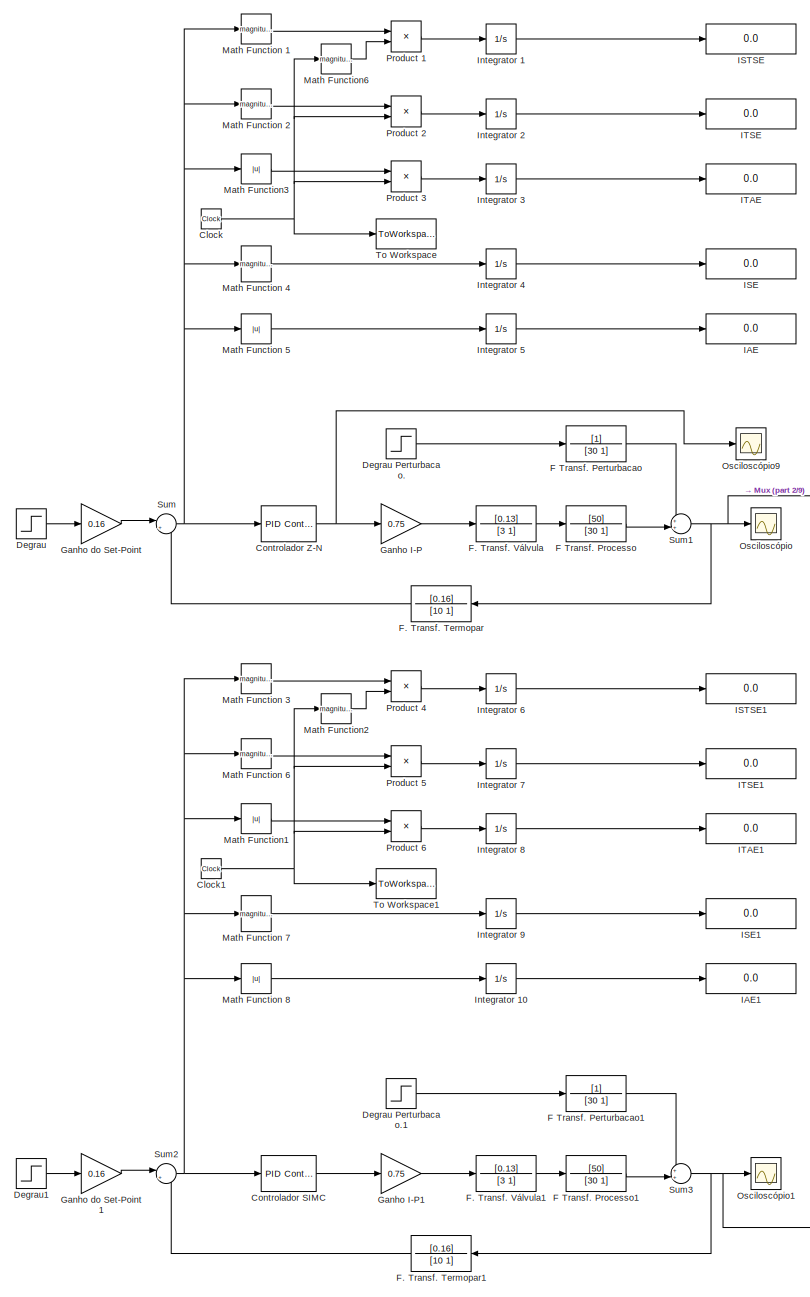
[diagram: root canvas - part 1/9, top left region]
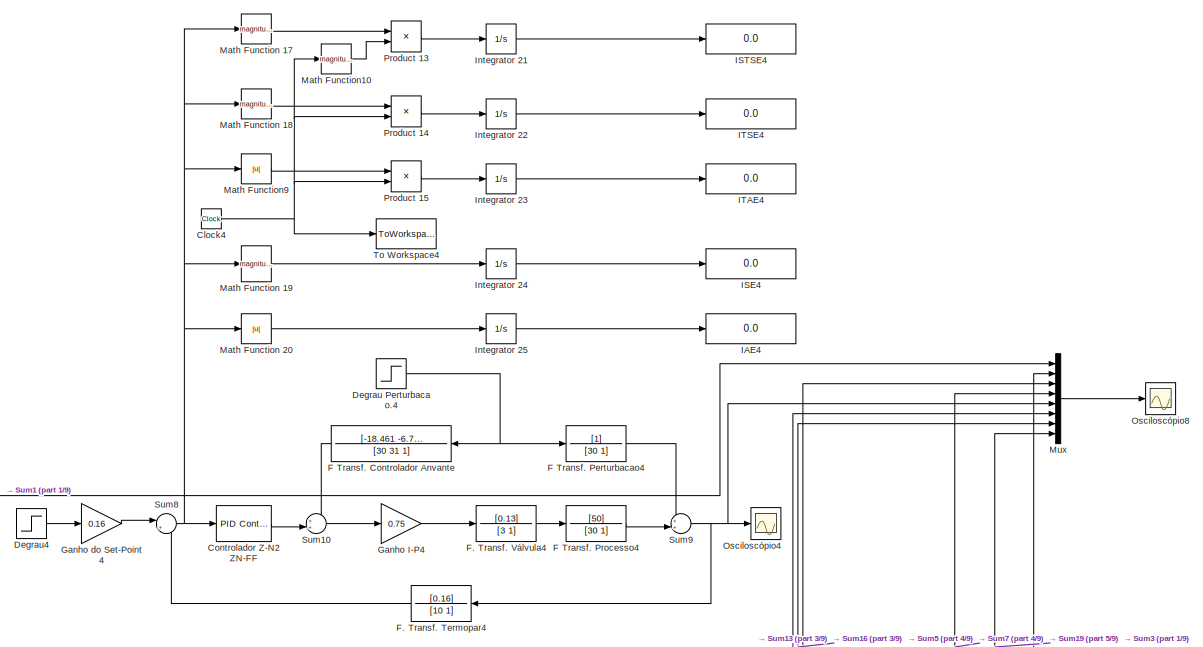
[diagram: root canvas - part 2/9, top right region]
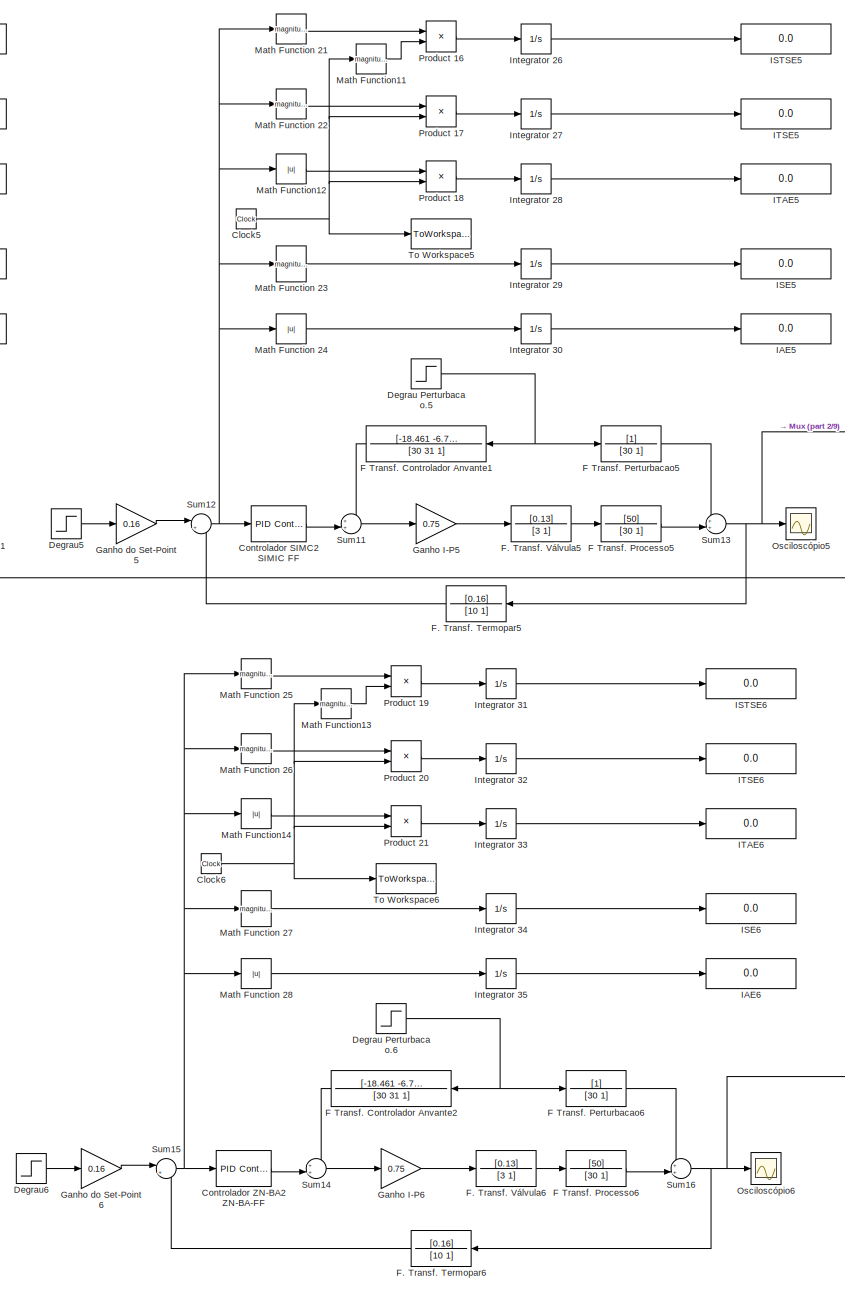
[diagram: root canvas - part 3/9, top center region]
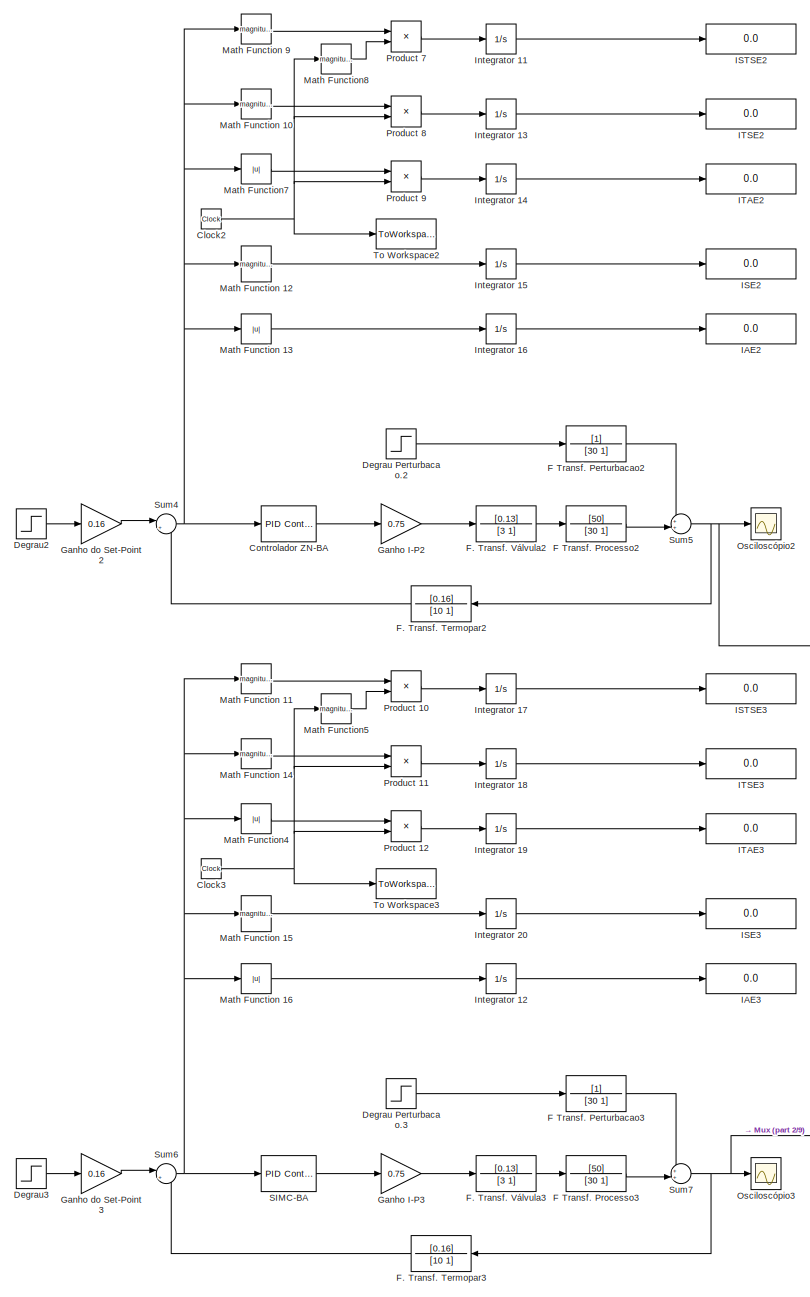
[diagram: root canvas - part 4/9, middle left region]
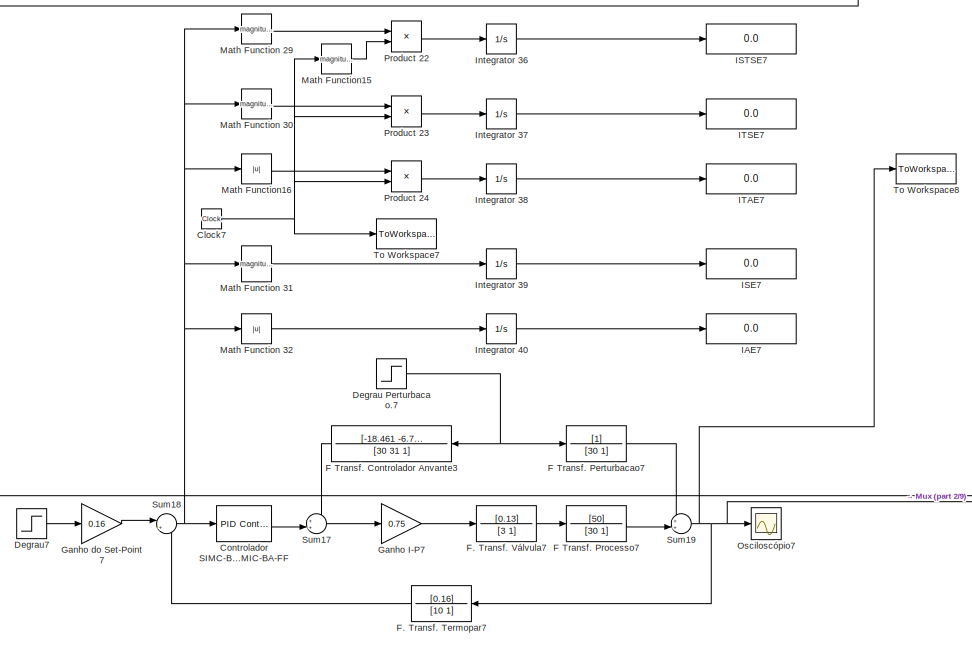
[diagram: root canvas - part 5/9, central region]
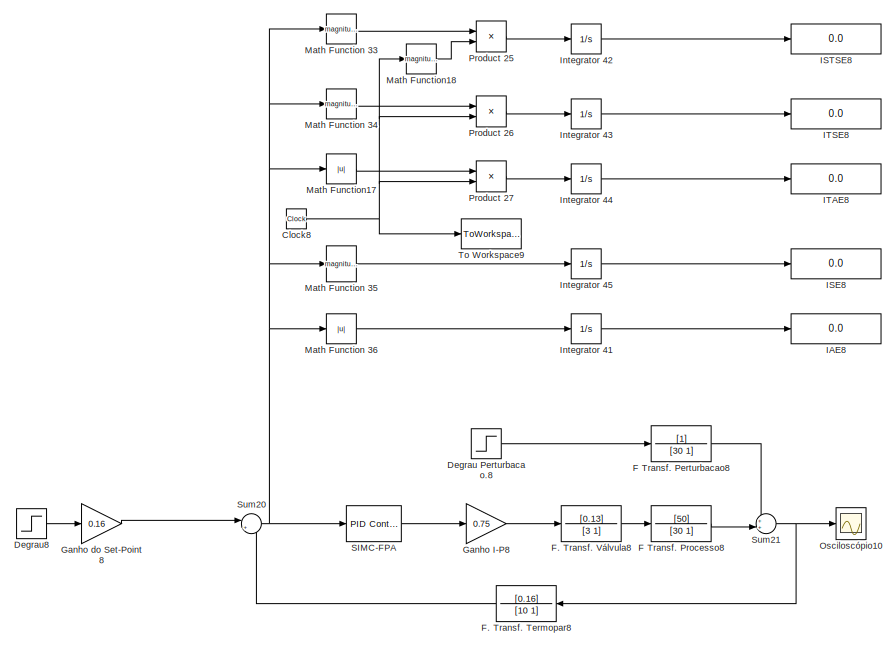
[diagram: root canvas - part 6/9, bottom left region]
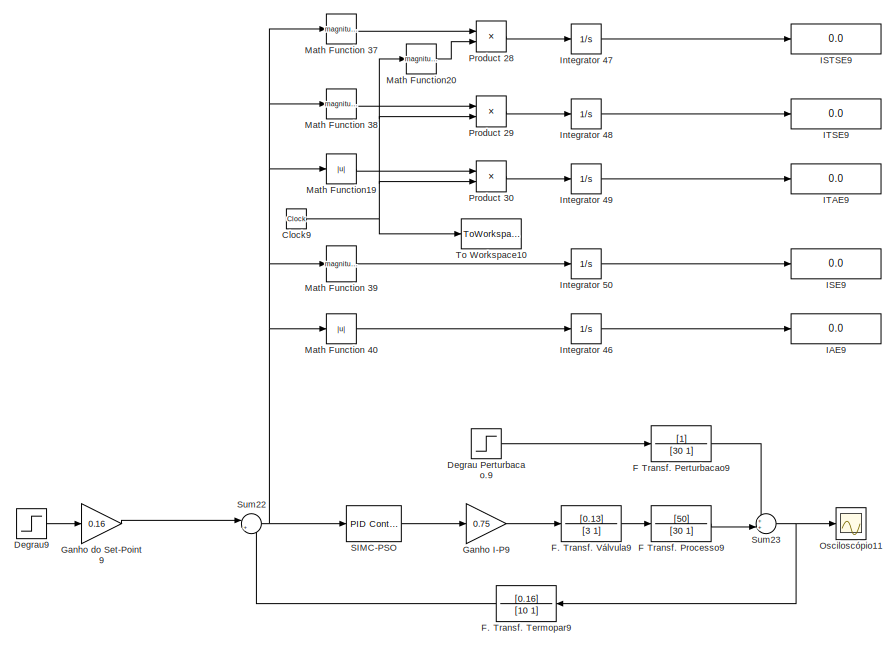
[diagram: root canvas - part 7/9, bottom right region]
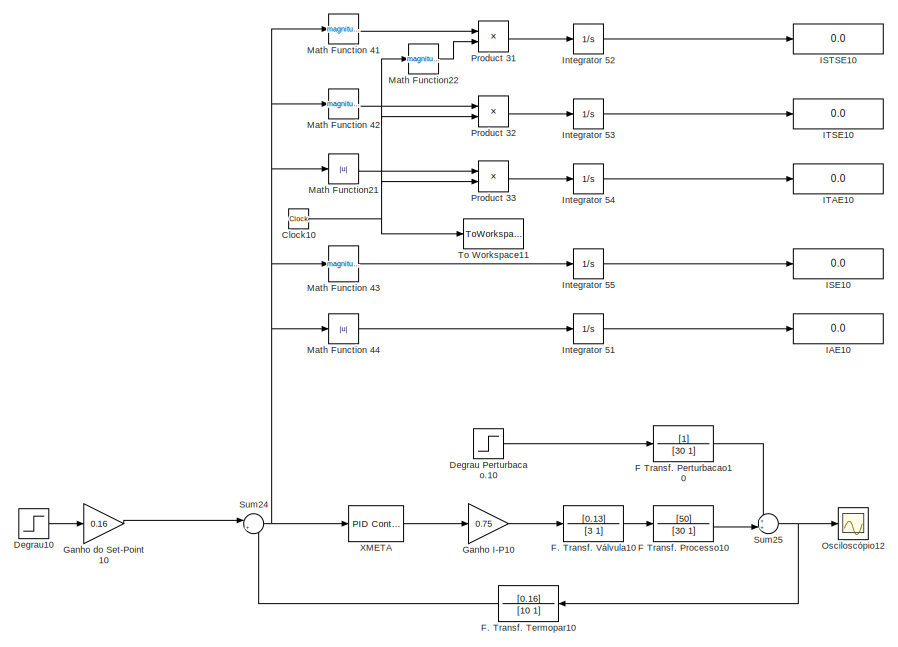
[diagram: root canvas - part 8/9, bottom right region]
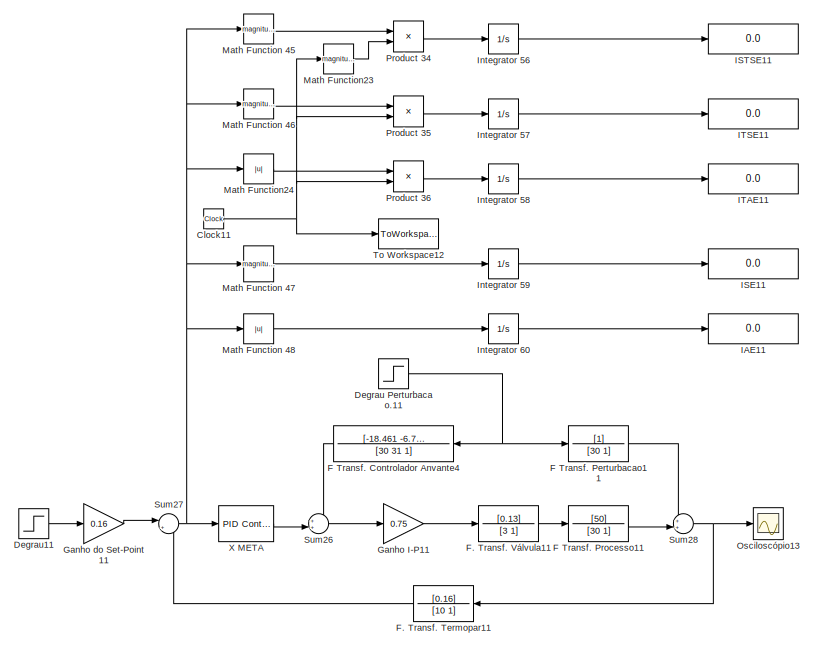
[diagram: root canvas - part 9/9, bottom left region]
MODEL slx_0f0fdf6776ff
KIND model
CONFIG AbsTol = auto
CONFIG FixedStep = auto
CONFIG MaxStep = auto
CONFIG MinStep = auto
CONFIG RelTol = 1e-3
CONFIG SampleTimeConstraint = Unconstrained
CONFIG Solver = ode45
CONFIG SolverMode = Auto
CONFIG SolverName = ode45
CONFIG StartTime = 0.0
CONFIG StopTime = 800
BLOCK [Clock] Clock
BLOCK [Clock] Clock1
BLOCK [Clock] Clock10
BLOCK [Clock] Clock11
BLOCK [Clock] Clock2
BLOCK [Clock] Clock3
BLOCK [Clock] Clock4
BLOCK [Clock] Clock5
BLOCK [Clock] Clock6
BLOCK [Clock] Clock7
BLOCK [Clock] Clock8
BLOCK [Clock] Clock9
BLOCK [Reference] Controlador SIMC  REF=simulink/Continuous/PID Controller
  Ports = [1, 1]
  SourceBlock = simulink/Continuous/PID Controller
  SourceType = PID 1dof
BLOCK [Reference] Controlador SIMC-BA2 SIMIC-BA-FF  REF=simulink/Continuous/PID Controller
  Ports = [1, 1]
  SourceBlock = simulink/Continuous/PID Controller
  SourceType = PID 1dof
BLOCK [Reference] Controlador SIMC2 SIMIC FF   REF=simulink/Continuous/PID Controller
  Ports = [1, 1]
  SourceBlock = simulink/Continuous/PID Controller
  SourceType = PID 1dof
BLOCK [Reference] Controlador Z-N  REF=simulink/Continuous/PID Controller
  Ports = [1, 1]
  SourceBlock = simulink/Continuous/PID Controller
  SourceType = PID 1dof
BLOCK [Reference] Controlador Z-N2 ZN-FF  REF=simulink/Continuous/PID Controller
  Ports = [1, 1]
  SourceBlock = simulink/Continuous/PID Controller
  SourceType = PID 1dof
BLOCK [Reference] Controlador ZN-BA  REF=simulink/Continuous/PID Controller
  Ports = [1, 1]
  SourceBlock = simulink/Continuous/PID Controller
  SourceType = PID 1dof
BLOCK [Reference] Controlador ZN-BA2 ZN-BA-FF  REF=simulink/Continuous/PID Controller
  Ports = [1, 1]
  SourceBlock = simulink/Continuous/PID Controller
  SourceType = PID 1dof
BLOCK [Step] Degrau
  SampleTime = 0
  Time = 0
BLOCK [Step] Degrau Perturbacao.
  SampleTime = 0
  Time = 0
BLOCK [Step] Degrau Perturbacao.1
  SampleTime = 0
  Time = 0
BLOCK [Step] Degrau Perturbacao.10
  SampleTime = 0
  Time = 0
BLOCK [Step] Degrau Perturbacao.11
  SampleTime = 0
  Time = 0
BLOCK [Step] Degrau Perturbacao.2
  SampleTime = 0
  Time = 0
BLOCK [Step] Degrau Perturbacao.3
  SampleTime = 0
  Time = 0
BLOCK [Step] Degrau Perturbacao.4
  SampleTime = 0
  Time = 0
BLOCK [Step] Degrau Perturbacao.5
  SampleTime = 0
  Time = 0
BLOCK [Step] Degrau Perturbacao.6
  SampleTime = 0
  Time = 0
BLOCK [Step] Degrau Perturbacao.7
  SampleTime = 0
  Time = 0
BLOCK [Step] Degrau Perturbacao.8
  SampleTime = 0
  Time = 0
BLOCK [Step] Degrau Perturbacao.9
  SampleTime = 0
  Time = 0
BLOCK [Step] Degrau1
  SampleTime = 0
  Time = 0
BLOCK [Step] Degrau10
  SampleTime = 0
  Time = 0
BLOCK [Step] Degrau11
  SampleTime = 0
  Time = 0
BLOCK [Step] Degrau2
  SampleTime = 0
  Time = 0
BLOCK [Step] Degrau3
  SampleTime = 0
  Time = 0
BLOCK [Step] Degrau4
  SampleTime = 0
  Time = 0
BLOCK [Step] Degrau5
  SampleTime = 0
  Time = 0
BLOCK [Step] Degrau6
  SampleTime = 0
  Time = 0
BLOCK [Step] Degrau7
  SampleTime = 0
  Time = 0
BLOCK [Step] Degrau8
  SampleTime = 0
  Time = 0
BLOCK [Step] Degrau9
  SampleTime = 0
  Time = 0
BLOCK [TransferFcn] F Transf. Controlador Anvante
  Denominator = [30 31 1]
  Numerator = [-18.461 -6.769 -0.205]
BLOCK [TransferFcn] F Transf. Controlador Anvante1
  Denominator = [30 31 1]
  Numerator = [-18.461 -6.769 -0.205]
BLOCK [TransferFcn] F Transf. Controlador Anvante2
  Denominator = [30 31 1]
  Numerator = [-18.461 -6.769 -0.205]
BLOCK [TransferFcn] F Transf. Controlador Anvante3
  Denominator = [30 31 1]
  Numerator = [-18.461 -6.769 -0.205]
BLOCK [TransferFcn] F Transf. Controlador Anvante4
  Denominator = [30 31 1]
  Numerator = [-18.461 -6.769 -0.205]
BLOCK [TransferFcn] F Transf. Perturbacao
  Denominator = [30 1]
BLOCK [TransferFcn] F Transf. Perturbacao1
  Denominator = [30 1]
BLOCK [TransferFcn] F Transf. Perturbacao10
  Denominator = [30 1]
BLOCK [TransferFcn] F Transf. Perturbacao11
  Denominator = [30 1]
BLOCK [TransferFcn] F Transf. Perturbacao2
  Denominator = [30 1]
BLOCK [TransferFcn] F Transf. Perturbacao3
  Denominator = [30 1]
BLOCK [TransferFcn] F Transf. Perturbacao4
  Denominator = [30 1]
BLOCK [TransferFcn] F Transf. Perturbacao5
  Denominator = [30 1]
BLOCK [TransferFcn] F Transf. Perturbacao6
  Denominator = [30 1]
BLOCK [TransferFcn] F Transf. Perturbacao7
  Denominator = [30 1]
BLOCK [TransferFcn] F Transf. Perturbacao8
  Denominator = [30 1]
BLOCK [TransferFcn] F Transf. Perturbacao9
  Denominator = [30 1]
BLOCK [TransferFcn] F Transf. Processo
  Denominator = [30 1]
  Numerator = [50]
BLOCK [TransferFcn] F Transf. Processo1
  Denominator = [30 1]
  Numerator = [50]
BLOCK [TransferFcn] F Transf. Processo10
  Denominator = [30 1]
  Numerator = [50]
BLOCK [TransferFcn] F Transf. Processo11
  Denominator = [30 1]
  Numerator = [50]
BLOCK [TransferFcn] F Transf. Processo2
  Denominator = [30 1]
  Numerator = [50]
BLOCK [TransferFcn] F Transf. Processo3
  Denominator = [30 1]
  Numerator = [50]
BLOCK [TransferFcn] F Transf. Processo4
  Denominator = [30 1]
  Numerator = [50]
BLOCK [TransferFcn] F Transf. Processo5
  Denominator = [30 1]
  Numerator = [50]
BLOCK [TransferFcn] F Transf. Processo6
  Denominator = [30 1]
  Numerator = [50]
BLOCK [TransferFcn] F Transf. Processo7
  Denominator = [30 1]
  Numerator = [50]
BLOCK [TransferFcn] F Transf. Processo8
  Denominator = [30 1]
  Numerator = [50]
BLOCK [TransferFcn] F Transf. Processo9
  Denominator = [30 1]
  Numerator = [50]
BLOCK [TransferFcn] F. Transf. Termopar
  Denominator = [10 1]
  Numerator = [0.16]
BLOCK [TransferFcn] F. Transf. Termopar1
  Denominator = [10 1]
  Numerator = [0.16]
BLOCK [TransferFcn] F. Transf. Termopar10
  Denominator = [10 1]
  Numerator = [0.16]
BLOCK [TransferFcn] F. Transf. Termopar11
  Denominator = [10 1]
  Numerator = [0.16]
BLOCK [TransferFcn] F. Transf. Termopar2
  Denominator = [10 1]
  Numerator = [0.16]
BLOCK [TransferFcn] F. Transf. Termopar3
  Denominator = [10 1]
  Numerator = [0.16]
BLOCK [TransferFcn] F. Transf. Termopar4
  Denominator = [10 1]
  Numerator = [0.16]
BLOCK [TransferFcn] F. Transf. Termopar5
  Denominator = [10 1]
  Numerator = [0.16]
BLOCK [TransferFcn] F. Transf. Termopar6
  Denominator = [10 1]
  Numerator = [0.16]
BLOCK [TransferFcn] F. Transf. Termopar7
  Denominator = [10 1]
  Numerator = [0.16]
BLOCK [TransferFcn] F. Transf. Termopar8
  Denominator = [10 1]
  Numerator = [0.16]
BLOCK [TransferFcn] F. Transf. Termopar9
  Denominator = [10 1]
  Numerator = [0.16]
BLOCK [TransferFcn] F. Transf. Válvula
  Denominator = [3 1]
  Numerator = [0.13]
BLOCK [TransferFcn] F. Transf. Válvula1
  Denominator = [3 1]
  Numerator = [0.13]
BLOCK [TransferFcn] F. Transf. Válvula10
  Denominator = [3 1]
  Numerator = [0.13]
BLOCK [TransferFcn] F. Transf. Válvula11
  Denominator = [3 1]
  Numerator = [0.13]
BLOCK [TransferFcn] F. Transf. Válvula2
  Denominator = [3 1]
  Numerator = [0.13]
BLOCK [TransferFcn] F. Transf. Válvula3
  Denominator = [3 1]
  Numerator = [0.13]
BLOCK [TransferFcn] F. Transf. Válvula4
  Denominator = [3 1]
  Numerator = [0.13]
BLOCK [TransferFcn] F. Transf. Válvula5
  Denominator = [3 1]
  Numerator = [0.13]
BLOCK [TransferFcn] F. Transf. Válvula6
  Denominator = [3 1]
  Numerator = [0.13]
BLOCK [TransferFcn] F. Transf. Válvula7
  Denominator = [3 1]
  Numerator = [0.13]
BLOCK [TransferFcn] F. Transf. Válvula8
  Denominator = [3 1]
  Numerator = [0.13]
BLOCK [TransferFcn] F. Transf. Válvula9
  Denominator = [3 1]
  Numerator = [0.13]
BLOCK [Gain] Ganho I-P
  Gain = 0.75
  OutDataTypeStr = Inherit: Inherit via internal rule
  ParamDataTypeStr = Inherit: Inherit via internal rule
  SaturateOnIntegerOverflow = off
BLOCK [Gain] Ganho I-P1
  Gain = 0.75
  OutDataTypeStr = Inherit: Inherit via internal rule
  ParamDataTypeStr = Inherit: Inherit via internal rule
  SaturateOnIntegerOverflow = off
BLOCK [Gain] Ganho I-P10
  Gain = 0.75
  OutDataTypeStr = Inherit: Inherit via internal rule
  ParamDataTypeStr = Inherit: Inherit via internal rule
  SaturateOnIntegerOverflow = off
BLOCK [Gain] Ganho I-P11
  Gain = 0.75
  OutDataTypeStr = Inherit: Inherit via internal rule
  ParamDataTypeStr = Inherit: Inherit via internal rule
  SaturateOnIntegerOverflow = off
BLOCK [Gain] Ganho I-P2
  Gain = 0.75
  OutDataTypeStr = Inherit: Inherit via internal rule
  ParamDataTypeStr = Inherit: Inherit via internal rule
  SaturateOnIntegerOverflow = off
BLOCK [Gain] Ganho I-P3
  Gain = 0.75
  OutDataTypeStr = Inherit: Inherit via internal rule
  ParamDataTypeStr = Inherit: Inherit via internal rule
  SaturateOnIntegerOverflow = off
BLOCK [Gain] Ganho I-P4
  Gain = 0.75
  OutDataTypeStr = Inherit: Inherit via internal rule
  ParamDataTypeStr = Inherit: Inherit via internal rule
  SaturateOnIntegerOverflow = off
BLOCK [Gain] Ganho I-P5
  Gain = 0.75
  OutDataTypeStr = Inherit: Inherit via internal rule
  ParamDataTypeStr = Inherit: Inherit via internal rule
  SaturateOnIntegerOverflow = off
BLOCK [Gain] Ganho I-P6
  Gain = 0.75
  OutDataTypeStr = Inherit: Inherit via internal rule
  ParamDataTypeStr = Inherit: Inherit via internal rule
  SaturateOnIntegerOverflow = off
BLOCK [Gain] Ganho I-P7
  Gain = 0.75
  OutDataTypeStr = Inherit: Inherit via internal rule
  ParamDataTypeStr = Inherit: Inherit via internal rule
  SaturateOnIntegerOverflow = off
BLOCK [Gain] Ganho I-P8
  Gain = 0.75
  OutDataTypeStr = Inherit: Inherit via internal rule
  ParamDataTypeStr = Inherit: Inherit via internal rule
  SaturateOnIntegerOverflow = off
BLOCK [Gain] Ganho I-P9
  Gain = 0.75
  OutDataTypeStr = Inherit: Inherit via internal rule
  ParamDataTypeStr = Inherit: Inherit via internal rule
  SaturateOnIntegerOverflow = off
BLOCK [Gain] Ganho do Set-Point
  Gain = 0.16
  OutDataTypeStr = Inherit: Inherit via internal rule
  ParamDataTypeStr = Inherit: Inherit via internal rule
  SaturateOnIntegerOverflow = off
BLOCK [Gain] Ganho do Set-Point1
  Gain = 0.16
  OutDataTypeStr = Inherit: Inherit via internal rule
  ParamDataTypeStr = Inherit: Inherit via internal rule
  SaturateOnIntegerOverflow = off
BLOCK [Gain] Ganho do Set-Point10
  Gain = 0.16
  OutDataTypeStr = Inherit: Inherit via internal rule
  ParamDataTypeStr = Inherit: Inherit via internal rule
  SaturateOnIntegerOverflow = off
BLOCK [Gain] Ganho do Set-Point11
  Gain = 0.16
  OutDataTypeStr = Inherit: Inherit via internal rule
  ParamDataTypeStr = Inherit: Inherit via internal rule
  SaturateOnIntegerOverflow = off
BLOCK [Gain] Ganho do Set-Point2
  Gain = 0.16
  OutDataTypeStr = Inherit: Inherit via internal rule
  ParamDataTypeStr = Inherit: Inherit via internal rule
  SaturateOnIntegerOverflow = off
BLOCK [Gain] Ganho do Set-Point3
  Gain = 0.16
  OutDataTypeStr = Inherit: Inherit via internal rule
  ParamDataTypeStr = Inherit: Inherit via internal rule
  SaturateOnIntegerOverflow = off
BLOCK [Gain] Ganho do Set-Point4
  Gain = 0.16
  OutDataTypeStr = Inherit: Inherit via internal rule
  ParamDataTypeStr = Inherit: Inherit via internal rule
  SaturateOnIntegerOverflow = off
BLOCK [Gain] Ganho do Set-Point5
  Gain = 0.16
  OutDataTypeStr = Inherit: Inherit via internal rule
  ParamDataTypeStr = Inherit: Inherit via internal rule
  SaturateOnIntegerOverflow = off
BLOCK [Gain] Ganho do Set-Point6
  Gain = 0.16
  OutDataTypeStr = Inherit: Inherit via internal rule
  ParamDataTypeStr = Inherit: Inherit via internal rule
  SaturateOnIntegerOverflow = off
BLOCK [Gain] Ganho do Set-Point7
  Gain = 0.16
  OutDataTypeStr = Inherit: Inherit via internal rule
  ParamDataTypeStr = Inherit: Inherit via internal rule
  SaturateOnIntegerOverflow = off
BLOCK [Gain] Ganho do Set-Point8
  Gain = 0.16
  OutDataTypeStr = Inherit: Inherit via internal rule
  ParamDataTypeStr = Inherit: Inherit via internal rule
  SaturateOnIntegerOverflow = off
BLOCK [Gain] Ganho do Set-Point9
  Gain = 0.16
  OutDataTypeStr = Inherit: Inherit via internal rule
  ParamDataTypeStr = Inherit: Inherit via internal rule
  SaturateOnIntegerOverflow = off
BLOCK [Display] IAE
  Decimation = 1
  Ports = [1]
BLOCK [Display] IAE1
  Decimation = 1
  Ports = [1]
BLOCK [Display] IAE10
  Decimation = 1
  Ports = [1]
BLOCK [Display] IAE11
  Decimation = 1
  Ports = [1]
BLOCK [Display] IAE2
  Decimation = 1
  Ports = [1]
BLOCK [Display] IAE3
  Decimation = 1
  Ports = [1]
BLOCK [Display] IAE4
  Decimation = 1
  Ports = [1]
BLOCK [Display] IAE5
  Decimation = 1
  Ports = [1]
BLOCK [Display] IAE6
  Decimation = 1
  Ports = [1]
BLOCK [Display] IAE7
  Decimation = 1
  Ports = [1]
BLOCK [Display] IAE8
  Decimation = 1
  Ports = [1]
BLOCK [Display] IAE9
  Decimation = 1
  Ports = [1]
BLOCK [Display] ISE
  Decimation = 1
  Ports = [1]
BLOCK [Display] ISE1
  Decimation = 1
  Ports = [1]
BLOCK [Display] ISE10
  Decimation = 1
  Ports = [1]
BLOCK [Display] ISE11
  Decimation = 1
  Ports = [1]
BLOCK [Display] ISE2
  Decimation = 1
  Ports = [1]
BLOCK [Display] ISE3
  Decimation = 1
  Ports = [1]
BLOCK [Display] ISE4
  Decimation = 1
  Ports = [1]
BLOCK [Display] ISE5
  Decimation = 1
  Ports = [1]
BLOCK [Display] ISE6
  Decimation = 1
  Ports = [1]
BLOCK [Display] ISE7
  Decimation = 1
  Ports = [1]
BLOCK [Display] ISE8
  Decimation = 1
  Ports = [1]
BLOCK [Display] ISE9
  Decimation = 1
  Ports = [1]
BLOCK [Display] ISTSE
  Decimation = 1
  Ports = [1]
BLOCK [Display] ISTSE1
  Decimation = 1
  Ports = [1]
BLOCK [Display] ISTSE10
  Decimation = 1
  Ports = [1]
BLOCK [Display] ISTSE11
  Decimation = 1
  Ports = [1]
BLOCK [Display] ISTSE2
  Decimation = 1
  Ports = [1]
BLOCK [Display] ISTSE3
  Decimation = 1
  Ports = [1]
BLOCK [Display] ISTSE4
  Decimation = 1
  Ports = [1]
BLOCK [Display] ISTSE5
  Decimation = 1
  Ports = [1]
BLOCK [Display] ISTSE6
  Decimation = 1
  Ports = [1]
BLOCK [Display] ISTSE7
  Decimation = 1
  Ports = [1]
BLOCK [Display] ISTSE8
  Decimation = 1
  Ports = [1]
BLOCK [Display] ISTSE9
  Decimation = 1
  Ports = [1]
BLOCK [Display] ITAE
  Decimation = 1
  Ports = [1]
BLOCK [Display] ITAE1
  Decimation = 1
  Ports = [1]
BLOCK [Display] ITAE10
  Decimation = 1
  Ports = [1]
BLOCK [Display] ITAE11
  Decimation = 1
  Ports = [1]
BLOCK [Display] ITAE2
  Decimation = 1
  Ports = [1]
BLOCK [Display] ITAE3
  Decimation = 1
  Ports = [1]
BLOCK [Display] ITAE4
  Decimation = 1
  Ports = [1]
BLOCK [Display] ITAE5
  Decimation = 1
  Ports = [1]
BLOCK [Display] ITAE6
  Decimation = 1
  Ports = [1]
BLOCK [Display] ITAE7
  Decimation = 1
  Ports = [1]
BLOCK [Display] ITAE8
  Decimation = 1
  Ports = [1]
BLOCK [Display] ITAE9
  Decimation = 1
  Ports = [1]
BLOCK [Display] ITSE
  Decimation = 1
  Ports = [1]
BLOCK [Display] ITSE1
  Decimation = 1
  Ports = [1]
BLOCK [Display] ITSE10
  Decimation = 1
  Ports = [1]
BLOCK [Display] ITSE11
  Decimation = 1
  Ports = [1]
BLOCK [Display] ITSE2
  Decimation = 1
  Ports = [1]
BLOCK [Display] ITSE3
  Decimation = 1
  Ports = [1]
BLOCK [Display] ITSE4
  Decimation = 1
  Ports = [1]
BLOCK [Display] ITSE5
  Decimation = 1
  Ports = [1]
BLOCK [Display] ITSE6
  Decimation = 1
  Ports = [1]
BLOCK [Display] ITSE7
  Decimation = 1
  Ports = [1]
BLOCK [Display] ITSE8
  Decimation = 1
  Ports = [1]
BLOCK [Display] ITSE9
  Decimation = 1
  Ports = [1]
BLOCK [Integrator] Integrator 1
  Ports = [1, 1]
BLOCK [Integrator] Integrator 10
  Ports = [1, 1]
BLOCK [Integrator] Integrator 11
  Ports = [1, 1]
BLOCK [Integrator] Integrator 12
  Ports = [1, 1]
BLOCK [Integrator] Integrator 13
  Ports = [1, 1]
BLOCK [Integrator] Integrator 14
  Ports = [1, 1]
BLOCK [Integrator] Integrator 15
  Ports = [1, 1]
BLOCK [Integrator] Integrator 16
  Ports = [1, 1]
BLOCK [Integrator] Integrator 17
  Ports = [1, 1]
BLOCK [Integrator] Integrator 18
  Ports = [1, 1]
BLOCK [Integrator] Integrator 19
  Ports = [1, 1]
BLOCK [Integrator] Integrator 2
  Ports = [1, 1]
BLOCK [Integrator] Integrator 20
  Ports = [1, 1]
BLOCK [Integrator] Integrator 21
  Ports = [1, 1]
BLOCK [Integrator] Integrator 22
  Ports = [1, 1]
BLOCK [Integrator] Integrator 23
  Ports = [1, 1]
BLOCK [Integrator] Integrator 24
  Ports = [1, 1]
BLOCK [Integrator] Integrator 25
  Ports = [1, 1]
BLOCK [Integrator] Integrator 26
  Ports = [1, 1]
BLOCK [Integrator] Integrator 27
  Ports = [1, 1]
BLOCK [Integrator] Integrator 28
  Ports = [1, 1]
BLOCK [Integrator] Integrator 29
  Ports = [1, 1]
BLOCK [Integrator] Integrator 3
  Ports = [1, 1]
BLOCK [Integrator] Integrator 30
  Ports = [1, 1]
BLOCK [Integrator] Integrator 31
  Ports = [1, 1]
BLOCK [Integrator] Integrator 32
  Ports = [1, 1]
BLOCK [Integrator] Integrator 33
  Ports = [1, 1]
BLOCK [Integrator] Integrator 34
  Ports = [1, 1]
BLOCK [Integrator] Integrator 35
  Ports = [1, 1]
BLOCK [Integrator] Integrator 36
  Ports = [1, 1]
BLOCK [Integrator] Integrator 37
  Ports = [1, 1]
BLOCK [Integrator] Integrator 38
  Ports = [1, 1]
BLOCK [Integrator] Integrator 39
  Ports = [1, 1]
BLOCK [Integrator] Integrator 4
  Ports = [1, 1]
BLOCK [Integrator] Integrator 40
  Ports = [1, 1]
BLOCK [Integrator] Integrator 41
  Ports = [1, 1]
BLOCK [Integrator] Integrator 42
  Ports = [1, 1]
BLOCK [Integrator] Integrator 43
  Ports = [1, 1]
BLOCK [Integrator] Integrator 44
  Ports = [1, 1]
BLOCK [Integrator] Integrator 45
  Ports = [1, 1]
BLOCK [Integrator] Integrator 46
  Ports = [1, 1]
BLOCK [Integrator] Integrator 47
  Ports = [1, 1]
BLOCK [Integrator] Integrator 48
  Ports = [1, 1]
BLOCK [Integrator] Integrator 49
  Ports = [1, 1]
BLOCK [Integrator] Integrator 5
  Ports = [1, 1]
BLOCK [Integrator] Integrator 50
  Ports = [1, 1]
BLOCK [Integrator] Integrator 51
  Ports = [1, 1]
BLOCK [Integrator] Integrator 52
  Ports = [1, 1]
BLOCK [Integrator] Integrator 53
  Ports = [1, 1]
BLOCK [Integrator] Integrator 54
  Ports = [1, 1]
BLOCK [Integrator] Integrator 55
  Ports = [1, 1]
BLOCK [Integrator] Integrator 56
  Ports = [1, 1]
BLOCK [Integrator] Integrator 57
  Ports = [1, 1]
BLOCK [Integrator] Integrator 58
  Ports = [1, 1]
BLOCK [Integrator] Integrator 59
  Ports = [1, 1]
BLOCK [Integrator] Integrator 6
  Ports = [1, 1]
BLOCK [Integrator] Integrator 60
  Ports = [1, 1]
BLOCK [Integrator] Integrator 7
  Ports = [1, 1]
BLOCK [Integrator] Integrator 8
  Ports = [1, 1]
BLOCK [Integrator] Integrator 9
  Ports = [1, 1]
BLOCK [Math] Math Function 1
  Operator = magnitude^2
  Ports = [1, 1]
BLOCK [Math] Math Function 10
  Operator = magnitude^2
  Ports = [1, 1]
BLOCK [Math] Math Function 11
  Operator = magnitude^2
  Ports = [1, 1]
BLOCK [Math] Math Function 12
  Operator = magnitude^2
  Ports = [1, 1]
BLOCK [Abs] Math Function 13
  SaturateOnIntegerOverflow = off
BLOCK [Math] Math Function 14
  Operator = magnitude^2
  Ports = [1, 1]
BLOCK [Math] Math Function 15
  Operator = magnitude^2
  Ports = [1, 1]
BLOCK [Abs] Math Function 16
  SaturateOnIntegerOverflow = off
BLOCK [Math] Math Function 17
  Operator = magnitude^2
  Ports = [1, 1]
BLOCK [Math] Math Function 18
  Operator = magnitude^2
  Ports = [1, 1]
BLOCK [Math] Math Function 19
  Operator = magnitude^2
  Ports = [1, 1]
BLOCK [Math] Math Function 2
  Operator = magnitude^2
  Ports = [1, 1]
BLOCK [Abs] Math Function 20
  SaturateOnIntegerOverflow = off
BLOCK [Math] Math Function 21
  Operator = magnitude^2
  Ports = [1, 1]
BLOCK [Math] Math Function 22
  Operator = magnitude^2
  Ports = [1, 1]
BLOCK [Math] Math Function 23
  Operator = magnitude^2
  Ports = [1, 1]
BLOCK [Abs] Math Function 24
  SaturateOnIntegerOverflow = off
BLOCK [Math] Math Function 25
  Operator = magnitude^2
  Ports = [1, 1]
BLOCK [Math] Math Function 26
  Operator = magnitude^2
  Ports = [1, 1]
BLOCK [Math] Math Function 27
  Operator = magnitude^2
  Ports = [1, 1]
BLOCK [Abs] Math Function 28
  SaturateOnIntegerOverflow = off
BLOCK [Math] Math Function 29
  Operator = magnitude^2
  Ports = [1, 1]
BLOCK [Math] Math Function 3
  Operator = magnitude^2
  Ports = [1, 1]
BLOCK [Math] Math Function 30
  Operator = magnitude^2
  Ports = [1, 1]
BLOCK [Math] Math Function 31
  Operator = magnitude^2
  Ports = [1, 1]
BLOCK [Abs] Math Function 32
  SaturateOnIntegerOverflow = off
BLOCK [Math] Math Function 33
  Operator = magnitude^2
  Ports = [1, 1]
BLOCK [Math] Math Function 34
  Operator = magnitude^2
  Ports = [1, 1]
BLOCK [Math] Math Function 35
  Operator = magnitude^2
  Ports = [1, 1]
BLOCK [Abs] Math Function 36
  SaturateOnIntegerOverflow = off
BLOCK [Math] Math Function 37
  Operator = magnitude^2
  Ports = [1, 1]
BLOCK [Math] Math Function 38
  Operator = magnitude^2
  Ports = [1, 1]
BLOCK [Math] Math Function 39
  Operator = magnitude^2
  Ports = [1, 1]
BLOCK [Math] Math Function 4
  Operator = magnitude^2
  Ports = [1, 1]
BLOCK [Abs] Math Function 40
  SaturateOnIntegerOverflow = off
BLOCK [Math] Math Function 41
  Operator = magnitude^2
  Ports = [1, 1]
BLOCK [Math] Math Function 42
  Operator = magnitude^2
  Ports = [1, 1]
BLOCK [Math] Math Function 43
  Operator = magnitude^2
  Ports = [1, 1]
BLOCK [Abs] Math Function 44
  SaturateOnIntegerOverflow = off
BLOCK [Math] Math Function 45
  Operator = magnitude^2
  Ports = [1, 1]
BLOCK [Math] Math Function 46
  Operator = magnitude^2
  Ports = [1, 1]
BLOCK [Math] Math Function 47
  Operator = magnitude^2
  Ports = [1, 1]
BLOCK [Abs] Math Function 48
  SaturateOnIntegerOverflow = off
BLOCK [Abs] Math Function 5
  SaturateOnIntegerOverflow = off
BLOCK [Math] Math Function 6
  Operator = magnitude^2
  Ports = [1, 1]
BLOCK [Math] Math Function 7
  Operator = magnitude^2
  Ports = [1, 1]
BLOCK [Abs] Math Function 8
  SaturateOnIntegerOverflow = off
BLOCK [Math] Math Function 9
  Operator = magnitude^2
  Ports = [1, 1]
BLOCK [Abs] Math Function1
  SaturateOnIntegerOverflow = off
BLOCK [Math] Math Function10
  Operator = magnitude^2
  Ports = [1, 1]
BLOCK [Math] Math Function11
  Operator = magnitude^2
  Ports = [1, 1]
BLOCK [Abs] Math Function12
  SaturateOnIntegerOverflow = off
BLOCK [Math] Math Function13
  Operator = magnitude^2
  Ports = [1, 1]
BLOCK [Abs] Math Function14
  SaturateOnIntegerOverflow = off
BLOCK [Math] Math Function15
  Operator = magnitude^2
  Ports = [1, 1]
BLOCK [Abs] Math Function16
  SaturateOnIntegerOverflow = off
BLOCK [Abs] Math Function17
  SaturateOnIntegerOverflow = off
BLOCK [Math] Math Function18
  Operator = magnitude^2
  Ports = [1, 1]
BLOCK [Abs] Math Function19
  SaturateOnIntegerOverflow = off
BLOCK [Math] Math Function2
  Operator = magnitude^2
  Ports = [1, 1]
BLOCK [Math] Math Function20
  Operator = magnitude^2
  Ports = [1, 1]
BLOCK [Abs] Math Function21
  SaturateOnIntegerOverflow = off
BLOCK [Math] Math Function22
  Operator = magnitude^2
  Ports = [1, 1]
BLOCK [Math] Math Function23
  Operator = magnitude^2
  Ports = [1, 1]
BLOCK [Abs] Math Function24
  SaturateOnIntegerOverflow = off
BLOCK [Abs] Math Function3
  SaturateOnIntegerOverflow = off
BLOCK [Abs] Math Function4
  SaturateOnIntegerOverflow = off
BLOCK [Math] Math Function5
  Operator = magnitude^2
  Ports = [1, 1]
BLOCK [Math] Math Function6
  Operator = magnitude^2
  Ports = [1, 1]
BLOCK [Abs] Math Function7
  SaturateOnIntegerOverflow = off
BLOCK [Math] Math Function8
  Operator = magnitude^2
  Ports = [1, 1]
BLOCK [Abs] Math Function9
  SaturateOnIntegerOverflow = off
BLOCK [Mux] Mux
  DisplayOption = bar
  Inputs = 8
  Ports = [8, 1]
BLOCK [Scope] Osciloscópio
  Ports = [1]
  ScopeSpecificationString = Simulink.scopes.TimeScopeBlockCfg('CurrentConfiguration', extmgr.ConfigurationSet(extmgr.Configuration('Core','General UI',true),extmgr.Configuration('Core','Source UI',true),extmgr.Configuration('Sources','WiredSimulink',true,'DataLoggingSaveFormat','StructureWithTime','DataLoggingLimitDataPoints',true,'DataLoggingDecimation','1','DataLoggingDecimateData',true),extmgr.Configuration('Visuals','Tim...<+1634ch>
BLOCK [Scope] Osciloscópio1
  Ports = [1]
  ScopeSpecificationString = C++SS(StrPVP('Location','[5, 49, 1371, 727]'),StrPVP('Open','off'),MxPVP('AxesTitles',24,'struct(''axes1'',''%<SignalLabel>'')'),MxPVP('ScopeGraphics',28,'struct(''FigureColor'',''[0.5 0.5 0.5]'',''AxesColor'',''[0 0 0]'',''AxesTickColor'',''[1 1 1]'',''LineColors'',''[1 1 0;1 0 1;0 1 1;1 0 0;0 1 0;0 0 1]'',''LineStyles'',''-|-|-|-|-|-'',''LineWidths'',''[0.5 0.5 0.5 0.5 0.5 0.5]'',''MarkerStyles'...<+269ch>  <repeated x4 — deduplicated; at blocks: Osciloscópio1, Osciloscópio2, Osciloscópio6, Osciloscópio7>
BLOCK [Scope] Osciloscópio10
  Ports = [1]
  ScopeSpecificationString = C++SS(StrPVP('Location','[1367, 49, 2733, 727]'),StrPVP('Open','off'),MxPVP('AxesTitles',24,'struct(''axes1'',''%<SignalLabel>'')'),MxPVP('ScopeGraphics',28,'struct(''FigureColor'',''[0.5 0.5 0.5]'',''AxesColor'',''[0 0 0]'',''AxesTickColor'',''[1 1 1]'',''LineColors'',''[1 1 0;1 0 1;0 1 1;1 0 0;0 1 0;0 0 1]'',''LineStyles'',''-|-|-|-|-|-'',''LineWidths'',''[0.5 0.5 0.5 0.5 0.5 0.5]'',''MarkerStyl...<+304ch>
BLOCK [Scope] Osciloscópio11
  Ports = [1]
  ScopeSpecificationString = C++SS(StrPVP('Location','[1367, 49, 2733, 727]'),StrPVP('Open','off'),MxPVP('AxesTitles',24,'struct(''axes1'',''%<SignalLabel>'')'),MxPVP('ScopeGraphics',28,'struct(''FigureColor'',''[0.5 0.5 0.5]'',''AxesColor'',''[0 0 0]'',''AxesTickColor'',''[1 1 1]'',''LineColors'',''[1 1 0;1 0 1;0 1 1;1 0 0;0 1 0;0 0 1]'',''LineStyles'',''-|-|-|-|-|-'',''LineWidths'',''[0.5 0.5 0.5 0.5 0.5 0.5]'',''MarkerStyl...<+336ch>
BLOCK [Scope] Osciloscópio12
  Ports = [1]
  ScopeSpecificationString = C++SS(StrPVP('Location','[1367, 49, 2733, 727]'),StrPVP('Open','off'),MxPVP('AxesTitles',24,'struct(''axes1'',''%<SignalLabel>'')'),MxPVP('ScopeGraphics',28,'struct(''FigureColor'',''[0.5 0.5 0.5]'',''AxesColor'',''[0 0 0]'',''AxesTickColor'',''[1 1 1]'',''LineColors'',''[1 1 0;1 0 1;0 1 1;1 0 0;0 1 0;0 0 1]'',''LineStyles'',''-|-|-|-|-|-'',''LineWidths'',''[0.5 0.5 0.5 0.5 0.5 0.5]'',''MarkerStyl...<+368ch>
BLOCK [Scope] Osciloscópio13
  Ports = [1]
  ScopeSpecificationString = C++SS(StrPVP('SaveName','ScopeData2'))
BLOCK [Scope] Osciloscópio2
  Ports = [1]
BLOCK [Scope] Osciloscópio3
  Ports = [1]
  ScopeSpecificationString = C++SS(StrPVP('Location','[1367, 49, 2733, 727]'),StrPVP('Open','off'),MxPVP('AxesTitles',24,'struct(''axes1'',''%<SignalLabel>'')'),MxPVP('ScopeGraphics',28,'struct(''FigureColor'',''[0.5 0.5 0.5]'',''AxesColor'',''[0 0 0]'',''AxesTickColor'',''[1 1 1]'',''LineColors'',''[1 1 0;1 0 1;0 1 1;1 0 0;0 1 0;0 0 1]'',''LineStyles'',''-|-|-|-|-|-'',''LineWidths'',''[0.5 0.5 0.5 0.5 0.5 0.5]'',''MarkerStyl...<+272ch>
BLOCK [Scope] Osciloscópio4
  Ports = [1]
  ScopeSpecificationString = Simulink.scopes.TimeScopeBlockCfg('CurrentConfiguration', extmgr.ConfigurationSet(extmgr.Configuration('Core','General UI',true),extmgr.Configuration('Core','Source UI',true),extmgr.Configuration('Sources','WiredSimulink',true,'DataLoggingVariableName','ScopeData4','DataLoggingSaveFormat','StructureWithTime','DataLoggingLimitDataPoints',true,'DataLoggingDecimation','1','DataLoggingDecimateData',tr...<+1675ch>
BLOCK [Scope] Osciloscópio5
  Ports = [1]
  ScopeSpecificationString = C++SS(StrPVP('Location','[1363, 494, 2729, 1172]'),StrPVP('Open','off'),MxPVP('AxesTitles',24,'struct(''axes1'',''%<SignalLabel>'')'),MxPVP('ScopeGraphics',28,'struct(''FigureColor'',''[0.5 0.5 0.5]'',''AxesColor'',''[0 0 0]'',''AxesTickColor'',''[1 1 1]'',''LineColors'',''[1 1 0;1 0 1;0 1 1;1 0 0;0 1 0;0 0 1]'',''LineStyles'',''-|-|-|-|-|-'',''LineWidths'',''[0.5 0.5 0.5 0.5 0.5 0.5]'',''MarkerSt...<+274ch>
BLOCK [Scope] Osciloscópio6
  Ports = [1]
BLOCK [Scope] Osciloscópio7
  Ports = [1]
BLOCK [Scope] Osciloscópio8
  Ports = [1]
  ScopeSpecificationString = Simulink.scopes.TimeScopeBlockCfg('CurrentConfiguration', extmgr.ConfigurationSet(extmgr.Configuration('Core','General UI',true,'FigureColor',[0.941176470588235 0.941176470588235 0.941176470588235]),extmgr.Configuration('Core','Source UI',true),extmgr.Configuration('Sources','WiredSimulink',true,'DataLoggingVariableName','ScopeData8','DataLoggingSaveFormat','StructureWithTime','DataLoggingLimitDat...<+1999ch>
BLOCK [Scope] Osciloscópio9
  Ports = [1]
  ScopeSpecificationString = Simulink.scopes.TimeScopeBlockCfg('CurrentConfiguration', extmgr.ConfigurationSet(extmgr.Configuration('Core','General UI',true),extmgr.Configuration('Core','Source UI',true),extmgr.Configuration('Sources','WiredSimulink',true,'DataLoggingVariableName','ScopeData9','DataLoggingSaveFormat','StructureWithTime','DataLoggingLimitDataPoints',true,'DataLoggingDecimation','1','DataLoggingDecimateData',tr...<+1684ch>
BLOCK [Product] Product 1
  InputSameDT = off
  OutDataTypeStr = Inherit: Inherit via internal rule
  Ports = [2, 1]
  RndMeth = Floor
  SaturateOnIntegerOverflow = off
BLOCK [Product] Product 10
  InputSameDT = off
  OutDataTypeStr = Inherit: Inherit via internal rule
  Ports = [2, 1]
  RndMeth = Floor
  SaturateOnIntegerOverflow = off
BLOCK [Product] Product 11
  InputSameDT = off
  OutDataTypeStr = Inherit: Inherit via internal rule
  Ports = [2, 1]
  RndMeth = Floor
  SaturateOnIntegerOverflow = off
BLOCK [Product] Product 12
  InputSameDT = off
  OutDataTypeStr = Inherit: Inherit via internal rule
  Ports = [2, 1]
  RndMeth = Floor
  SaturateOnIntegerOverflow = off
BLOCK [Product] Product 13
  InputSameDT = off
  OutDataTypeStr = Inherit: Inherit via internal rule
  Ports = [2, 1]
  RndMeth = Floor
  SaturateOnIntegerOverflow = off
BLOCK [Product] Product 14
  InputSameDT = off
  OutDataTypeStr = Inherit: Inherit via internal rule
  Ports = [2, 1]
  RndMeth = Floor
  SaturateOnIntegerOverflow = off
BLOCK [Product] Product 15
  InputSameDT = off
  OutDataTypeStr = Inherit: Inherit via internal rule
  Ports = [2, 1]
  RndMeth = Floor
  SaturateOnIntegerOverflow = off
BLOCK [Product] Product 16
  InputSameDT = off
  OutDataTypeStr = Inherit: Inherit via internal rule
  Ports = [2, 1]
  RndMeth = Floor
  SaturateOnIntegerOverflow = off
BLOCK [Product] Product 17
  InputSameDT = off
  OutDataTypeStr = Inherit: Inherit via internal rule
  Ports = [2, 1]
  RndMeth = Floor
  SaturateOnIntegerOverflow = off
BLOCK [Product] Product 18
  InputSameDT = off
  OutDataTypeStr = Inherit: Inherit via internal rule
  Ports = [2, 1]
  RndMeth = Floor
  SaturateOnIntegerOverflow = off
BLOCK [Product] Product 19
  InputSameDT = off
  OutDataTypeStr = Inherit: Inherit via internal rule
  Ports = [2, 1]
  RndMeth = Floor
  SaturateOnIntegerOverflow = off
BLOCK [Product] Product 2
  InputSameDT = off
  OutDataTypeStr = Inherit: Inherit via internal rule
  Ports = [2, 1]
  RndMeth = Floor
  SaturateOnIntegerOverflow = off
BLOCK [Product] Product 20
  InputSameDT = off
  OutDataTypeStr = Inherit: Inherit via internal rule
  Ports = [2, 1]
  RndMeth = Floor
  SaturateOnIntegerOverflow = off
BLOCK [Product] Product 21
  InputSameDT = off
  OutDataTypeStr = Inherit: Inherit via internal rule
  Ports = [2, 1]
  RndMeth = Floor
  SaturateOnIntegerOverflow = off
BLOCK [Product] Product 22
  InputSameDT = off
  OutDataTypeStr = Inherit: Inherit via internal rule
  Ports = [2, 1]
  RndMeth = Floor
  SaturateOnIntegerOverflow = off
BLOCK [Product] Product 23
  InputSameDT = off
  OutDataTypeStr = Inherit: Inherit via internal rule
  Ports = [2, 1]
  RndMeth = Floor
  SaturateOnIntegerOverflow = off
BLOCK [Product] Product 24
  InputSameDT = off
  OutDataTypeStr = Inherit: Inherit via internal rule
  Ports = [2, 1]
  RndMeth = Floor
  SaturateOnIntegerOverflow = off
BLOCK [Product] Product 25
  InputSameDT = off
  OutDataTypeStr = Inherit: Inherit via internal rule
  Ports = [2, 1]
  RndMeth = Floor
  SaturateOnIntegerOverflow = off
BLOCK [Product] Product 26
  InputSameDT = off
  OutDataTypeStr = Inherit: Inherit via internal rule
  Ports = [2, 1]
  RndMeth = Floor
  SaturateOnIntegerOverflow = off
BLOCK [Product] Product 27
  InputSameDT = off
  OutDataTypeStr = Inherit: Inherit via internal rule
  Ports = [2, 1]
  RndMeth = Floor
  SaturateOnIntegerOverflow = off
BLOCK [Product] Product 28
  InputSameDT = off
  OutDataTypeStr = Inherit: Inherit via internal rule
  Ports = [2, 1]
  RndMeth = Floor
  SaturateOnIntegerOverflow = off
BLOCK [Product] Product 29
  InputSameDT = off
  OutDataTypeStr = Inherit: Inherit via internal rule
  Ports = [2, 1]
  RndMeth = Floor
  SaturateOnIntegerOverflow = off
BLOCK [Product] Product 3
  InputSameDT = off
  OutDataTypeStr = Inherit: Inherit via internal rule
  Ports = [2, 1]
  RndMeth = Floor
  SaturateOnIntegerOverflow = off
BLOCK [Product] Product 30
  InputSameDT = off
  OutDataTypeStr = Inherit: Inherit via internal rule
  Ports = [2, 1]
  RndMeth = Floor
  SaturateOnIntegerOverflow = off
BLOCK [Product] Product 31
  InputSameDT = off
  OutDataTypeStr = Inherit: Inherit via internal rule
  Ports = [2, 1]
  RndMeth = Floor
  SaturateOnIntegerOverflow = off
BLOCK [Product] Product 32
  InputSameDT = off
  OutDataTypeStr = Inherit: Inherit via internal rule
  Ports = [2, 1]
  RndMeth = Floor
  SaturateOnIntegerOverflow = off
BLOCK [Product] Product 33
  InputSameDT = off
  OutDataTypeStr = Inherit: Inherit via internal rule
  Ports = [2, 1]
  RndMeth = Floor
  SaturateOnIntegerOverflow = off
BLOCK [Product] Product 34
  InputSameDT = off
  OutDataTypeStr = Inherit: Inherit via internal rule
  Ports = [2, 1]
  RndMeth = Floor
  SaturateOnIntegerOverflow = off
BLOCK [Product] Product 35
  InputSameDT = off
  OutDataTypeStr = Inherit: Inherit via internal rule
  Ports = [2, 1]
  RndMeth = Floor
  SaturateOnIntegerOverflow = off
BLOCK [Product] Product 36
  InputSameDT = off
  OutDataTypeStr = Inherit: Inherit via internal rule
  Ports = [2, 1]
  RndMeth = Floor
  SaturateOnIntegerOverflow = off
BLOCK [Product] Product 4
  InputSameDT = off
  OutDataTypeStr = Inherit: Inherit via internal rule
  Ports = [2, 1]
  RndMeth = Floor
  SaturateOnIntegerOverflow = off
BLOCK [Product] Product 5
  InputSameDT = off
  OutDataTypeStr = Inherit: Inherit via internal rule
  Ports = [2, 1]
  RndMeth = Floor
  SaturateOnIntegerOverflow = off
BLOCK [Product] Product 6
  InputSameDT = off
  OutDataTypeStr = Inherit: Inherit via internal rule
  Ports = [2, 1]
  RndMeth = Floor
  SaturateOnIntegerOverflow = off
BLOCK [Product] Product 7
  InputSameDT = off
  OutDataTypeStr = Inherit: Inherit via internal rule
  Ports = [2, 1]
  RndMeth = Floor
  SaturateOnIntegerOverflow = off
BLOCK [Product] Product 8
  InputSameDT = off
  OutDataTypeStr = Inherit: Inherit via internal rule
  Ports = [2, 1]
  RndMeth = Floor
  SaturateOnIntegerOverflow = off
BLOCK [Product] Product 9
  InputSameDT = off
  OutDataTypeStr = Inherit: Inherit via internal rule
  Ports = [2, 1]
  RndMeth = Floor
  SaturateOnIntegerOverflow = off
BLOCK [Reference] SIMC-BA  REF=simulink/Continuous/PID Controller
  Ports = [1, 1]
  SourceBlock = simulink/Continuous/PID Controller
  SourceType = PID 1dof
BLOCK [Reference] SIMC-FPA  REF=simulink/Continuous/PID Controller
  Ports = [1, 1]
  SourceBlock = simulink/Continuous/PID Controller
  SourceType = PID 1dof
BLOCK [Reference] SIMC-PSO  REF=simulink/Continuous/PID Controller
  Ports = [1, 1]
  SourceBlock = simulink/Continuous/PID Controller
  SourceType = PID 1dof
BLOCK [Sum] Sum
  IconShape = round
  InputSameDT = off
  Inputs = |+-
  OutDataTypeStr = Inherit: Inherit via internal rule
  Ports = [2, 1]
  SaturateOnIntegerOverflow = off
BLOCK [Sum] Sum1
  IconShape = round
  InputSameDT = off
  Inputs = ++|
  OutDataTypeStr = Inherit: Inherit via internal rule
  Ports = [2, 1]
  SaturateOnIntegerOverflow = off
BLOCK [Sum] Sum10
  IconShape = round
  InputSameDT = off
  Inputs = ++|
  OutDataTypeStr = Inherit: Inherit via internal rule
  Ports = [2, 1]
  SaturateOnIntegerOverflow = off
BLOCK [Sum] Sum11
  IconShape = round
  InputSameDT = off
  Inputs = ++|
  OutDataTypeStr = Inherit: Inherit via internal rule
  Ports = [2, 1]
  SaturateOnIntegerOverflow = off
BLOCK [Sum] Sum12
  IconShape = round
  InputSameDT = off
  Inputs = |+-
  OutDataTypeStr = Inherit: Inherit via internal rule
  Ports = [2, 1]
  SaturateOnIntegerOverflow = off
BLOCK [Sum] Sum13
  IconShape = round
  InputSameDT = off
  Inputs = ++|
  OutDataTypeStr = Inherit: Inherit via internal rule
  Ports = [2, 1]
  SaturateOnIntegerOverflow = off
BLOCK [Sum] Sum14
  IconShape = round
  InputSameDT = off
  Inputs = ++|
  OutDataTypeStr = Inherit: Inherit via internal rule
  Ports = [2, 1]
  SaturateOnIntegerOverflow = off
BLOCK [Sum] Sum15
  IconShape = round
  InputSameDT = off
  Inputs = |+-
  OutDataTypeStr = Inherit: Inherit via internal rule
  Ports = [2, 1]
  SaturateOnIntegerOverflow = off
BLOCK [Sum] Sum16
  IconShape = round
  InputSameDT = off
  Inputs = ++|
  OutDataTypeStr = Inherit: Inherit via internal rule
  Ports = [2, 1]
  SaturateOnIntegerOverflow = off
BLOCK [Sum] Sum17
  IconShape = round
  InputSameDT = off
  Inputs = ++|
  OutDataTypeStr = Inherit: Inherit via internal rule
  Ports = [2, 1]
  SaturateOnIntegerOverflow = off
BLOCK [Sum] Sum18
  IconShape = round
  InputSameDT = off
  Inputs = |+-
  OutDataTypeStr = Inherit: Inherit via internal rule
  Ports = [2, 1]
  SaturateOnIntegerOverflow = off
BLOCK [Sum] Sum19
  IconShape = round
  InputSameDT = off
  Inputs = ++|
  OutDataTypeStr = Inherit: Inherit via internal rule
  Ports = [2, 1]
  SaturateOnIntegerOverflow = off
BLOCK [Sum] Sum2
  IconShape = round
  InputSameDT = off
  Inputs = |+-
  OutDataTypeStr = Inherit: Inherit via internal rule
  Ports = [2, 1]
  SaturateOnIntegerOverflow = off
BLOCK [Sum] Sum20
  IconShape = round
  InputSameDT = off
  Inputs = |+-
  OutDataTypeStr = Inherit: Inherit via internal rule
  Ports = [2, 1]
  SaturateOnIntegerOverflow = off
BLOCK [Sum] Sum21
  IconShape = round
  InputSameDT = off
  Inputs = ++|
  OutDataTypeStr = Inherit: Inherit via internal rule
  Ports = [2, 1]
  SaturateOnIntegerOverflow = off
BLOCK [Sum] Sum22
  IconShape = round
  InputSameDT = off
  Inputs = |+-
  OutDataTypeStr = Inherit: Inherit via internal rule
  Ports = [2, 1]
  SaturateOnIntegerOverflow = off
BLOCK [Sum] Sum23
  IconShape = round
  InputSameDT = off
  Inputs = ++|
  OutDataTypeStr = Inherit: Inherit via internal rule
  Ports = [2, 1]
  SaturateOnIntegerOverflow = off
BLOCK [Sum] Sum24
  IconShape = round
  InputSameDT = off
  Inputs = |+-
  OutDataTypeStr = Inherit: Inherit via internal rule
  Ports = [2, 1]
  SaturateOnIntegerOverflow = off
BLOCK [Sum] Sum25
  IconShape = round
  InputSameDT = off
  Inputs = ++|
  OutDataTypeStr = Inherit: Inherit via internal rule
  Ports = [2, 1]
  SaturateOnIntegerOverflow = off
BLOCK [Sum] Sum26
  IconShape = round
  InputSameDT = off
  Inputs = ++|
  OutDataTypeStr = Inherit: Inherit via internal rule
  Ports = [2, 1]
  SaturateOnIntegerOverflow = off
BLOCK [Sum] Sum27
  IconShape = round
  InputSameDT = off
  Inputs = |+-
  OutDataTypeStr = Inherit: Inherit via internal rule
  Ports = [2, 1]
  SaturateOnIntegerOverflow = off
BLOCK [Sum] Sum28
  IconShape = round
  InputSameDT = off
  Inputs = ++|
  OutDataTypeStr = Inherit: Inherit via internal rule
  Ports = [2, 1]
  SaturateOnIntegerOverflow = off
BLOCK [Sum] Sum3
  IconShape = round
  InputSameDT = off
  Inputs = ++|
  OutDataTypeStr = Inherit: Inherit via internal rule
  Ports = [2, 1]
  SaturateOnIntegerOverflow = off
BLOCK [Sum] Sum4
  IconShape = round
  InputSameDT = off
  Inputs = |+-
  OutDataTypeStr = Inherit: Inherit via internal rule
  Ports = [2, 1]
  SaturateOnIntegerOverflow = off
BLOCK [Sum] Sum5
  IconShape = round
  InputSameDT = off
  Inputs = ++|
  OutDataTypeStr = Inherit: Inherit via internal rule
  Ports = [2, 1]
  SaturateOnIntegerOverflow = off
BLOCK [Sum] Sum6
  IconShape = round
  InputSameDT = off
  Inputs = |+-
  OutDataTypeStr = Inherit: Inherit via internal rule
  Ports = [2, 1]
  SaturateOnIntegerOverflow = off
BLOCK [Sum] Sum7
  IconShape = round
  InputSameDT = off
  Inputs = ++|
  OutDataTypeStr = Inherit: Inherit via internal rule
  Ports = [2, 1]
  SaturateOnIntegerOverflow = off
BLOCK [Sum] Sum8
  IconShape = round
  InputSameDT = off
  Inputs = |+-
  OutDataTypeStr = Inherit: Inherit via internal rule
  Ports = [2, 1]
  SaturateOnIntegerOverflow = off
BLOCK [Sum] Sum9
  IconShape = round
  InputSameDT = off
  Inputs = ++|
  OutDataTypeStr = Inherit: Inherit via internal rule
  Ports = [2, 1]
  SaturateOnIntegerOverflow = off
BLOCK [ToWorkspace] To Workspace
  MaxDataPoints = inf
  Ports = [1]
  SampleTime = -1
  VariableName = t
BLOCK [ToWorkspace] To Workspace1
  MaxDataPoints = inf
  Ports = [1]
  SampleTime = -1
  VariableName = t1
BLOCK [ToWorkspace] To Workspace10
  MaxDataPoints = inf
  Ports = [1]
  SampleTime = -1
  VariableName = t9
BLOCK [ToWorkspace] To Workspace11
  MaxDataPoints = inf
  Ports = [1]
  SampleTime = -1
  VariableName = t10
BLOCK [ToWorkspace] To Workspace12
  MaxDataPoints = inf
  Ports = [1]
  SampleTime = -1
  VariableName = t11
BLOCK [ToWorkspace] To Workspace2
  MaxDataPoints = inf
  Ports = [1]
  SampleTime = -1
  VariableName = t2
BLOCK [ToWorkspace] To Workspace3
  MaxDataPoints = inf
  Ports = [1]
  SampleTime = -1
  VariableName = t3
BLOCK [ToWorkspace] To Workspace4
  MaxDataPoints = inf
  Ports = [1]
  SampleTime = -1
  VariableName = t4
BLOCK [ToWorkspace] To Workspace5
  MaxDataPoints = inf
  Ports = [1]
  SampleTime = -1
  VariableName = t5
BLOCK [ToWorkspace] To Workspace6
  MaxDataPoints = inf
  Ports = [1]
  SampleTime = -1
  VariableName = t6
BLOCK [ToWorkspace] To Workspace7
  MaxDataPoints = inf
  Ports = [1]
  SampleTime = -1
  VariableName = t7
BLOCK [ToWorkspace] To Workspace8
  MaxDataPoints = inf
  Ports = [1]
  SampleTime = -1
  VariableName = simout
BLOCK [ToWorkspace] To Workspace9
  MaxDataPoints = inf
  Ports = [1]
  SampleTime = -1
  VariableName = t8
BLOCK [Reference] X META  REF=simulink/Continuous/PID Controller
  Ports = [1, 1]
  SourceBlock = simulink/Continuous/PID Controller
  SourceType = PID 1dof
BLOCK [Reference] XMETA  REF=simulink/Continuous/PID Controller
  Ports = [1, 1]
  SourceBlock = simulink/Continuous/PID Controller
  SourceType = PID 1dof
NET Clock10:1 -> Math Function22:1, Product 32:2, Product 33:2, To Workspace11:1
NET Clock11:1 -> Math Function23:1, Product 35:2, Product 36:2, To Workspace12:1
NET Clock1:1 -> Math Function2:1, Product 5:2, Product 6:2, To Workspace1:1
NET Clock2:1 -> Math Function8:1, Product 8:2, Product 9:2, To Workspace2:1
NET Clock3:1 -> Math Function5:1, Product 11:2, Product 12:2, To Workspace3:1
NET Clock4:1 -> Math Function10:1, Product 14:2, Product 15:2, To Workspace4:1
NET Clock5:1 -> Math Function11:1, Product 17:2, Product 18:2, To Workspace5:1
NET Clock6:1 -> Math Function13:1, Product 20:2, Product 21:2, To Workspace6:1
NET Clock7:1 -> Math Function15:1, Product 23:2, Product 24:2, To Workspace7:1
NET Clock8:1 -> Math Function18:1, Product 26:2, Product 27:2, To Workspace9:1
NET Clock9:1 -> Math Function20:1, Product 29:2, Product 30:2, To Workspace10:1
NET Clock:1 -> Math Function6:1, Product 2:2, Product 3:2, To Workspace:1
LINE Controlador SIMC-BA2 SIMIC-BA-FF:1 -> Sum17:2
LINE Controlador SIMC2 SIMIC FF :1 -> Sum11:2
LINE Controlador SIMC:1 -> Ganho I-P1:1
LINE Controlador Z-N2 ZN-FF:1 -> Sum10:2
NET Controlador Z-N:1 -> Ganho I-P:1, Osciloscópio9:1
LINE Controlador ZN-BA2 ZN-BA-FF:1 -> Sum14:2
LINE Controlador ZN-BA:1 -> Ganho I-P2:1
LINE Degrau Perturbacao.10:1 -> F Transf. Perturbacao10:1
NET Degrau Perturbacao.11:1 -> F Transf. Controlador Anvante4:1, F Transf. Perturbacao11:1
LINE Degrau Perturbacao.1:1 -> F Transf. Perturbacao1:1
LINE Degrau Perturbacao.2:1 -> F Transf. Perturbacao2:1
LINE Degrau Perturbacao.3:1 -> F Transf. Perturbacao3:1
NET Degrau Perturbacao.4:1 -> F Transf. Controlador Anvante:1, F Transf. Perturbacao4:1
NET Degrau Perturbacao.5:1 -> F Transf. Controlador Anvante1:1, F Transf. Perturbacao5:1
NET Degrau Perturbacao.6:1 -> F Transf. Controlador Anvante2:1, F Transf. Perturbacao6:1
NET Degrau Perturbacao.7:1 -> F Transf. Controlador Anvante3:1, F Transf. Perturbacao7:1
LINE Degrau Perturbacao.8:1 -> F Transf. Perturbacao8:1
LINE Degrau Perturbacao.9:1 -> F Transf. Perturbacao9:1
LINE Degrau Perturbacao.:1 -> F Transf. Perturbacao:1
LINE Degrau10:1 -> Ganho do Set-Point10:1
LINE Degrau11:1 -> Ganho do Set-Point11:1
LINE Degrau1:1 -> Ganho do Set-Point1:1
LINE Degrau2:1 -> Ganho do Set-Point2:1
LINE Degrau3:1 -> Ganho do Set-Point3:1
LINE Degrau4:1 -> Ganho do Set-Point4:1
LINE Degrau5:1 -> Ganho do Set-Point5:1
LINE Degrau6:1 -> Ganho do Set-Point6:1
LINE Degrau7:1 -> Ganho do Set-Point7:1
LINE Degrau8:1 -> Ganho do Set-Point8:1
LINE Degrau9:1 -> Ganho do Set-Point9:1
LINE Degrau:1 -> Ganho do Set-Point:1
LINE F Transf. Controlador Anvante1:1 -> Sum11:1
LINE F Transf. Controlador Anvante2:1 -> Sum14:1
LINE F Transf. Controlador Anvante3:1 -> Sum17:1
LINE F Transf. Controlador Anvante4:1 -> Sum26:1
LINE F Transf. Controlador Anvante:1 -> Sum10:1
LINE F Transf. Perturbacao10:1 -> Sum25:1
LINE F Transf. Perturbacao11:1 -> Sum28:1
LINE F Transf. Perturbacao1:1 -> Sum3:1
LINE F Transf. Perturbacao2:1 -> Sum5:1
LINE F Transf. Perturbacao3:1 -> Sum7:1
LINE F Transf. Perturbacao4:1 -> Sum9:1
LINE F Transf. Perturbacao5:1 -> Sum13:1
LINE F Transf. Perturbacao6:1 -> Sum16:1
LINE F Transf. Perturbacao7:1 -> Sum19:1
LINE F Transf. Perturbacao8:1 -> Sum21:1
LINE F Transf. Perturbacao9:1 -> Sum23:1
LINE F Transf. Perturbacao:1 -> Sum1:1
LINE F Transf. Processo10:1 -> Sum25:2
LINE F Transf. Processo11:1 -> Sum28:2
LINE F Transf. Processo1:1 -> Sum3:2
LINE F Transf. Processo2:1 -> Sum5:2
LINE F Transf. Processo3:1 -> Sum7:2
LINE F Transf. Processo4:1 -> Sum9:2
LINE F Transf. Processo5:1 -> Sum13:2
LINE F Transf. Processo6:1 -> Sum16:2
LINE F Transf. Processo7:1 -> Sum19:2
LINE F Transf. Processo8:1 -> Sum21:2
LINE F Transf. Processo9:1 -> Sum23:2
LINE F Transf. Processo:1 -> Sum1:2
LINE F. Transf. Termopar10:1 -> Sum24:2
LINE F. Transf. Termopar11:1 -> Sum27:2
LINE F. Transf. Termopar1:1 -> Sum2:2
LINE F. Transf. Termopar2:1 -> Sum4:2
LINE F. Transf. Termopar3:1 -> Sum6:2
LINE F. Transf. Termopar4:1 -> Sum8:2
LINE F. Transf. Termopar5:1 -> Sum12:2
LINE F. Transf. Termopar6:1 -> Sum15:2
LINE F. Transf. Termopar7:1 -> Sum18:2
LINE F. Transf. Termopar8:1 -> Sum20:2
LINE F. Transf. Termopar9:1 -> Sum22:2
LINE F. Transf. Termopar:1 -> Sum:2
LINE F. Transf. Válvula10:1 -> F Transf. Processo10:1
LINE F. Transf. Válvula11:1 -> F Transf. Processo11:1
LINE F. Transf. Válvula1:1 -> F Transf. Processo1:1
LINE F. Transf. Válvula2:1 -> F Transf. Processo2:1
LINE F. Transf. Válvula3:1 -> F Transf. Processo3:1
LINE F. Transf. Válvula4:1 -> F Transf. Processo4:1
LINE F. Transf. Válvula5:1 -> F Transf. Processo5:1
LINE F. Transf. Válvula6:1 -> F Transf. Processo6:1
LINE F. Transf. Válvula7:1 -> F Transf. Processo7:1
LINE F. Transf. Válvula8:1 -> F Transf. Processo8:1
LINE F. Transf. Válvula9:1 -> F Transf. Processo9:1
LINE F. Transf. Válvula:1 -> F Transf. Processo:1
LINE Ganho I-P10:1 -> F. Transf. Válvula10:1
LINE Ganho I-P11:1 -> F. Transf. Válvula11:1
LINE Ganho I-P1:1 -> F. Transf. Válvula1:1
LINE Ganho I-P2:1 -> F. Transf. Válvula2:1
LINE Ganho I-P3:1 -> F. Transf. Válvula3:1
LINE Ganho I-P4:1 -> F. Transf. Válvula4:1
LINE Ganho I-P5:1 -> F. Transf. Válvula5:1
LINE Ganho I-P6:1 -> F. Transf. Válvula6:1
LINE Ganho I-P7:1 -> F. Transf. Válvula7:1
LINE Ganho I-P8:1 -> F. Transf. Válvula8:1
LINE Ganho I-P9:1 -> F. Transf. Válvula9:1
LINE Ganho I-P:1 -> F. Transf. Válvula:1
LINE Ganho do Set-Point10:1 -> Sum24:1
LINE Ganho do Set-Point11:1 -> Sum27:1
LINE Ganho do Set-Point1:1 -> Sum2:1
LINE Ganho do Set-Point2:1 -> Sum4:1
LINE Ganho do Set-Point3:1 -> Sum6:1
LINE Ganho do Set-Point4:1 -> Sum8:1
LINE Ganho do Set-Point5:1 -> Sum12:1
LINE Ganho do Set-Point6:1 -> Sum15:1
LINE Ganho do Set-Point7:1 -> Sum18:1
LINE Ganho do Set-Point8:1 -> Sum20:1
LINE Ganho do Set-Point9:1 -> Sum22:1
LINE Ganho do Set-Point:1 -> Sum:1
LINE Integrator 10:1 -> IAE1:1
LINE Integrator 11:1 -> ISTSE2:1
LINE Integrator 12:1 -> IAE3:1
LINE Integrator 13:1 -> ITSE2:1
LINE Integrator 14:1 -> ITAE2:1
LINE Integrator 15:1 -> ISE2:1
LINE Integrator 16:1 -> IAE2:1
LINE Integrator 17:1 -> ISTSE3:1
LINE Integrator 18:1 -> ITSE3:1
LINE Integrator 19:1 -> ITAE3:1
LINE Integrator 1:1 -> ISTSE:1
LINE Integrator 20:1 -> ISE3:1
LINE Integrator 21:1 -> ISTSE4:1
LINE Integrator 22:1 -> ITSE4:1
LINE Integrator 23:1 -> ITAE4:1
LINE Integrator 24:1 -> ISE4:1
LINE Integrator 25:1 -> IAE4:1
LINE Integrator 26:1 -> ISTSE5:1
LINE Integrator 27:1 -> ITSE5:1
LINE Integrator 28:1 -> ITAE5:1
LINE Integrator 29:1 -> ISE5:1
LINE Integrator 2:1 -> ITSE:1
LINE Integrator 30:1 -> IAE5:1
LINE Integrator 31:1 -> ISTSE6:1
LINE Integrator 32:1 -> ITSE6:1
LINE Integrator 33:1 -> ITAE6:1
LINE Integrator 34:1 -> ISE6:1
LINE Integrator 35:1 -> IAE6:1
LINE Integrator 36:1 -> ISTSE7:1
LINE Integrator 37:1 -> ITSE7:1
LINE Integrator 38:1 -> ITAE7:1
LINE Integrator 39:1 -> ISE7:1
LINE Integrator 3:1 -> ITAE:1
LINE Integrator 40:1 -> IAE7:1
LINE Integrator 41:1 -> IAE8:1
LINE Integrator 42:1 -> ISTSE8:1
LINE Integrator 43:1 -> ITSE8:1
LINE Integrator 44:1 -> ITAE8:1
LINE Integrator 45:1 -> ISE8:1
LINE Integrator 46:1 -> IAE9:1
LINE Integrator 47:1 -> ISTSE9:1
LINE Integrator 48:1 -> ITSE9:1
LINE Integrator 49:1 -> ITAE9:1
LINE Integrator 4:1 -> ISE:1
LINE Integrator 50:1 -> ISE9:1
LINE Integrator 51:1 -> IAE10:1
LINE Integrator 52:1 -> ISTSE10:1
LINE Integrator 53:1 -> ITSE10:1
LINE Integrator 54:1 -> ITAE10:1
LINE Integrator 55:1 -> ISE10:1
LINE Integrator 56:1 -> ISTSE11:1
LINE Integrator 57:1 -> ITSE11:1
LINE Integrator 58:1 -> ITAE11:1
LINE Integrator 59:1 -> ISE11:1
LINE Integrator 5:1 -> IAE:1
LINE Integrator 60:1 -> IAE11:1
LINE Integrator 6:1 -> ISTSE1:1
LINE Integrator 7:1 -> ITSE1:1
LINE Integrator 8:1 -> ITAE1:1
LINE Integrator 9:1 -> ISE1:1
LINE Math Function 10:1 -> Product 8:1
LINE Math Function 11:1 -> Product 10:1
LINE Math Function 12:1 -> Integrator 15:1
LINE Math Function 13:1 -> Integrator 16:1
LINE Math Function 14:1 -> Product 11:1
LINE Math Function 15:1 -> Integrator 20:1
LINE Math Function 16:1 -> Integrator 12:1
LINE Math Function 17:1 -> Product 13:1
LINE Math Function 18:1 -> Product 14:1
LINE Math Function 19:1 -> Integrator 24:1
LINE Math Function 1:1 -> Product 1:1
LINE Math Function 20:1 -> Integrator 25:1
LINE Math Function 21:1 -> Product 16:1
LINE Math Function 22:1 -> Product 17:1
LINE Math Function 23:1 -> Integrator 29:1
LINE Math Function 24:1 -> Integrator 30:1
LINE Math Function 25:1 -> Product 19:1
LINE Math Function 26:1 -> Product 20:1
LINE Math Function 27:1 -> Integrator 34:1
LINE Math Function 28:1 -> Integrator 35:1
LINE Math Function 29:1 -> Product 22:1
LINE Math Function 2:1 -> Product 2:1
LINE Math Function 30:1 -> Product 23:1
LINE Math Function 31:1 -> Integrator 39:1
LINE Math Function 32:1 -> Integrator 40:1
LINE Math Function 33:1 -> Product 25:1
LINE Math Function 34:1 -> Product 26:1
LINE Math Function 35:1 -> Integrator 45:1
LINE Math Function 36:1 -> Integrator 41:1
LINE Math Function 37:1 -> Product 28:1
LINE Math Function 38:1 -> Product 29:1
LINE Math Function 39:1 -> Integrator 50:1
LINE Math Function 3:1 -> Product 4:1
LINE Math Function 40:1 -> Integrator 46:1
LINE Math Function 41:1 -> Product 31:1
LINE Math Function 42:1 -> Product 32:1
LINE Math Function 43:1 -> Integrator 55:1
LINE Math Function 44:1 -> Integrator 51:1
LINE Math Function 45:1 -> Product 34:1
LINE Math Function 46:1 -> Product 35:1
LINE Math Function 47:1 -> Integrator 59:1
LINE Math Function 48:1 -> Integrator 60:1
LINE Math Function 4:1 -> Integrator 4:1
LINE Math Function 5:1 -> Integrator 5:1
LINE Math Function 6:1 -> Product 5:1
LINE Math Function 7:1 -> Integrator 9:1
LINE Math Function 8:1 -> Integrator 10:1
LINE Math Function 9:1 -> Product 7:1
LINE Math Function10:1 -> Product 13:2
LINE Math Function11:1 -> Product 16:2
LINE Math Function12:1 -> Product 18:1
LINE Math Function13:1 -> Product 19:2
LINE Math Function14:1 -> Product 21:1
LINE Math Function15:1 -> Product 22:2
LINE Math Function16:1 -> Product 24:1
LINE Math Function17:1 -> Product 27:1
LINE Math Function18:1 -> Product 25:2
LINE Math Function19:1 -> Product 30:1
LINE Math Function1:1 -> Product 6:1
LINE Math Function20:1 -> Product 28:2
LINE Math Function21:1 -> Product 33:1
LINE Math Function22:1 -> Product 31:2
LINE Math Function23:1 -> Product 34:2
LINE Math Function24:1 -> Product 36:1
LINE Math Function2:1 -> Product 4:2
LINE Math Function3:1 -> Product 3:1
LINE Math Function4:1 -> Product 12:1
LINE Math Function5:1 -> Product 10:2
LINE Math Function6:1 -> Product 1:2
LINE Math Function7:1 -> Product 9:1
LINE Math Function8:1 -> Product 7:2
LINE Math Function9:1 -> Product 15:1
LINE Mux:1 -> Osciloscópio8:1
LINE Product 10:1 -> Integrator 17:1
LINE Product 11:1 -> Integrator 18:1
LINE Product 12:1 -> Integrator 19:1
LINE Product 13:1 -> Integrator 21:1
LINE Product 14:1 -> Integrator 22:1
LINE Product 15:1 -> Integrator 23:1
LINE Product 16:1 -> Integrator 26:1
LINE Product 17:1 -> Integrator 27:1
LINE Product 18:1 -> Integrator 28:1
LINE Product 19:1 -> Integrator 31:1
LINE Product 1:1 -> Integrator 1:1
LINE Product 20:1 -> Integrator 32:1
LINE Product 21:1 -> Integrator 33:1
LINE Product 22:1 -> Integrator 36:1
LINE Product 23:1 -> Integrator 37:1
LINE Product 24:1 -> Integrator 38:1
LINE Product 25:1 -> Integrator 42:1
LINE Product 26:1 -> Integrator 43:1
LINE Product 27:1 -> Integrator 44:1
LINE Product 28:1 -> Integrator 47:1
LINE Product 29:1 -> Integrator 48:1
LINE Product 2:1 -> Integrator 2:1
LINE Product 30:1 -> Integrator 49:1
LINE Product 31:1 -> Integrator 52:1
LINE Product 32:1 -> Integrator 53:1
LINE Product 33:1 -> Integrator 54:1
LINE Product 34:1 -> Integrator 56:1
LINE Product 35:1 -> Integrator 57:1
LINE Product 36:1 -> Integrator 58:1
LINE Product 3:1 -> Integrator 3:1
LINE Product 4:1 -> Integrator 6:1
LINE Product 5:1 -> Integrator 7:1
LINE Product 6:1 -> Integrator 8:1
LINE Product 7:1 -> Integrator 11:1
LINE Product 8:1 -> Integrator 13:1
LINE Product 9:1 -> Integrator 14:1
LINE SIMC-BA:1 -> Ganho I-P3:1
LINE SIMC-FPA:1 -> Ganho I-P8:1
LINE SIMC-PSO:1 -> Ganho I-P9:1
LINE Sum10:1 -> Ganho I-P4:1
LINE Sum11:1 -> Ganho I-P5:1
NET Sum12:1 -> Controlador SIMC2 SIMIC FF :1, Math Function 21:1, Math Function 22:1, Math Function 23:1, Math Function 24:1, Math Function12:1
NET Sum13:1 -> F. Transf. Termopar5:1, Mux:6, Osciloscópio5:1
LINE Sum14:1 -> Ganho I-P6:1
NET Sum15:1 -> Controlador ZN-BA2 ZN-BA-FF:1, Math Function 25:1, Math Function 26:1, Math Function 27:1, Math Function 28:1, Math Function14:1
NET Sum16:1 -> F. Transf. Termopar6:1, Mux:7, Osciloscópio6:1
LINE Sum17:1 -> Ganho I-P7:1
NET Sum18:1 -> Controlador SIMC-BA2 SIMIC-BA-FF:1, Math Function 29:1, Math Function 30:1, Math Function 31:1, Math Function 32:1, Math Function16:1
NET Sum19:1 -> F. Transf. Termopar7:1, Mux:8, Osciloscópio7:1, To Workspace8:1
NET Sum1:1 -> F. Transf. Termopar:1, Mux:1, Osciloscópio:1
NET Sum20:1 -> Math Function 33:1, Math Function 34:1, Math Function 35:1, Math Function 36:1, Math Function17:1, SIMC-FPA:1
NET Sum21:1 -> F. Transf. Termopar8:1, Osciloscópio10:1
NET Sum22:1 -> Math Function 37:1, Math Function 38:1, Math Function 39:1, Math Function 40:1, Math Function19:1, SIMC-PSO:1
NET Sum23:1 -> F. Transf. Termopar9:1, Osciloscópio11:1
NET Sum24:1 -> Math Function 41:1, Math Function 42:1, Math Function 43:1, Math Function 44:1, Math Function21:1, XMETA:1
NET Sum25:1 -> F. Transf. Termopar10:1, Osciloscópio12:1
LINE Sum26:1 -> Ganho I-P11:1
NET Sum27:1 -> Math Function 45:1, Math Function 46:1, Math Function 47:1, Math Function 48:1, Math Function24:1, X META:1
NET Sum28:1 -> F. Transf. Termopar11:1, Osciloscópio13:1
NET Sum2:1 -> Controlador SIMC:1, Math Function 3:1, Math Function 6:1, Math Function 7:1, Math Function 8:1, Math Function1:1
NET Sum3:1 -> F. Transf. Termopar1:1, Mux:2, Osciloscópio1:1
NET Sum4:1 -> Controlador ZN-BA:1, Math Function 10:1, Math Function 12:1, Math Function 13:1, Math Function 9:1, Math Function7:1
NET Sum5:1 -> F. Transf. Termopar2:1, Mux:3, Osciloscópio2:1
NET Sum6:1 -> Math Function 11:1, Math Function 14:1, Math Function 15:1, Math Function 16:1, Math Function4:1, SIMC-BA:1
NET Sum7:1 -> F. Transf. Termopar3:1, Mux:4, Osciloscópio3:1
NET Sum8:1 -> Controlador Z-N2 ZN-FF:1, Math Function 17:1, Math Function 18:1, Math Function 19:1, Math Function 20:1, Math Function9:1
NET Sum9:1 -> F. Transf. Termopar4:1, Mux:5, Osciloscópio4:1
NET Sum:1 -> Controlador Z-N:1, Math Function 1:1, Math Function 2:1, Math Function 4:1, Math Function 5:1, Math Function3:1
LINE X META:1 -> Sum26:2
LINE XMETA:1 -> Ganho I-P10:1
note: NET lines group one-source signal fan-out (src -> all destinations, sorted); 1:1 wires keep LINE
